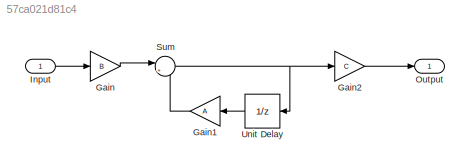
MODEL slx_57ca021d81c4
KIND model
CONFIG AbsTol = auto
CONFIG EnableMultiTasking = off
CONFIG FixedStep = Ts
CONFIG MaxStep = auto
CONFIG MinStep = auto
CONFIG RelTol = 1e-3
CONFIG SampleTimeConstraint = Unconstrained
CONFIG SolverName = FixedStepAuto
CONFIG StartTime = 0.0
CONFIG StopTime = 10.0
BLOCK [Gain] Gain
  Gain = B
  Multiplication = Matrix(K*u)
BLOCK [Gain] Gain1
  Gain = A
  Multiplication = Matrix(K*u)
  NameLocation = top
BLOCK [Gain] Gain2
  Gain = C
  Multiplication = Matrix(K*u)
BLOCK [Inport] Input
BLOCK [Outport] Output
BLOCK [Sum] Sum
  Inputs = |++
BLOCK [UnitDelay] Unit Delay
  HasFrameUpgradeWarning = on
  NameLocation = top
  SampleTime = Ts
LINE Gain1:1 -> Sum:2
LINE Gain2:1 -> Output:1
LINE Gain:1 -> Sum:1
LINE Input:1 -> Gain:1
NET Sum:1 -> Gain2:1, Unit Delay:1
LINE Unit Delay:1 -> Gain1:1
note: NET lines group one-source signal fan-out (src -> all destinations, sorted); 1:1 wires keep LINE
